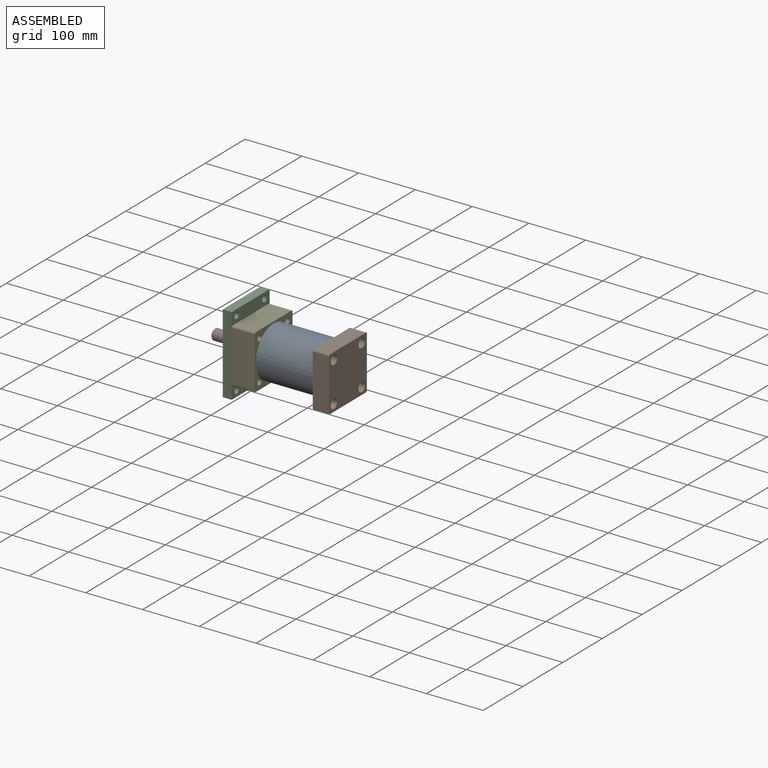
[diagram: assembled view]
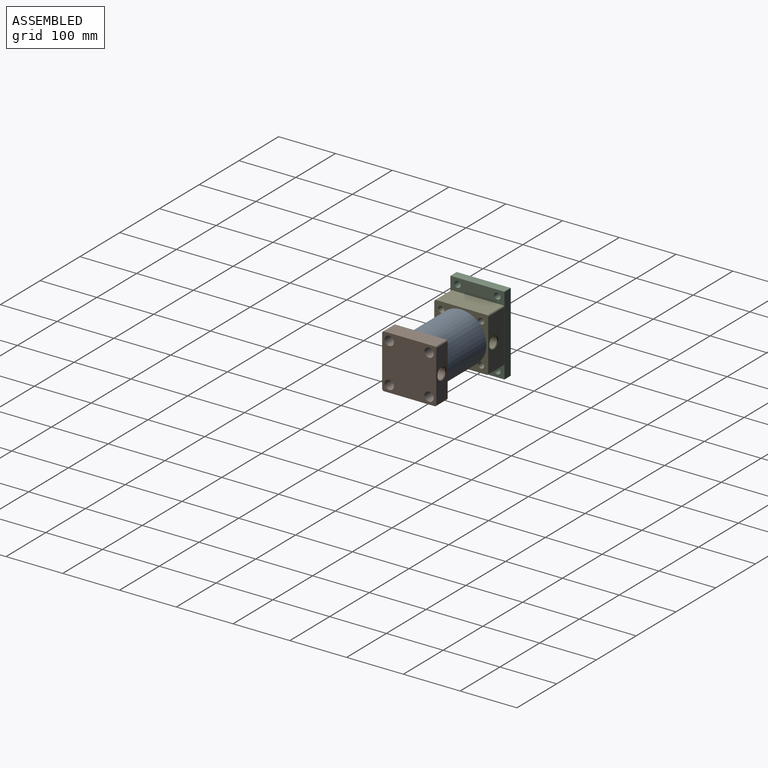
[diagram: assembled view, second angle]
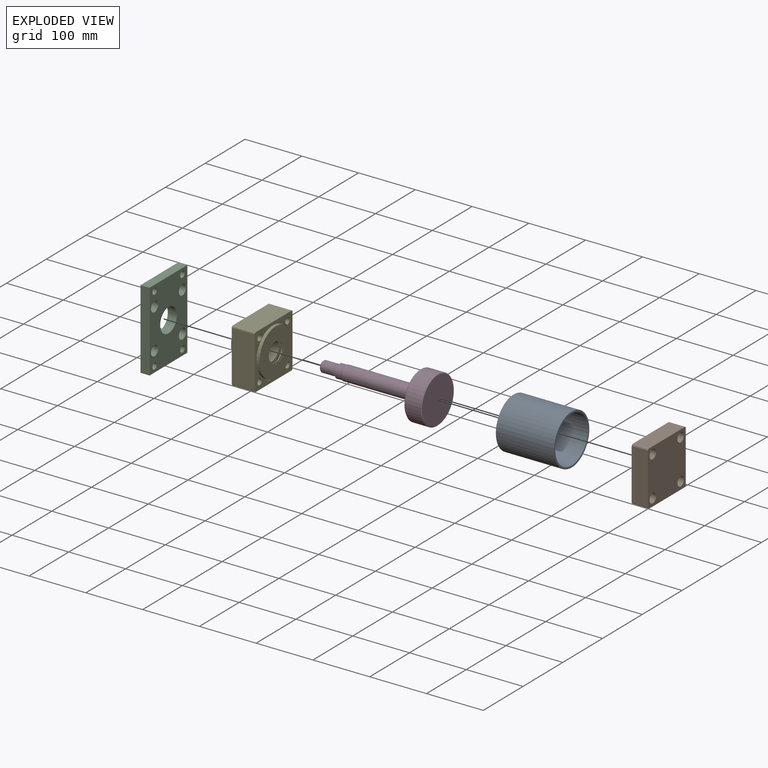
[diagram: exploded view]
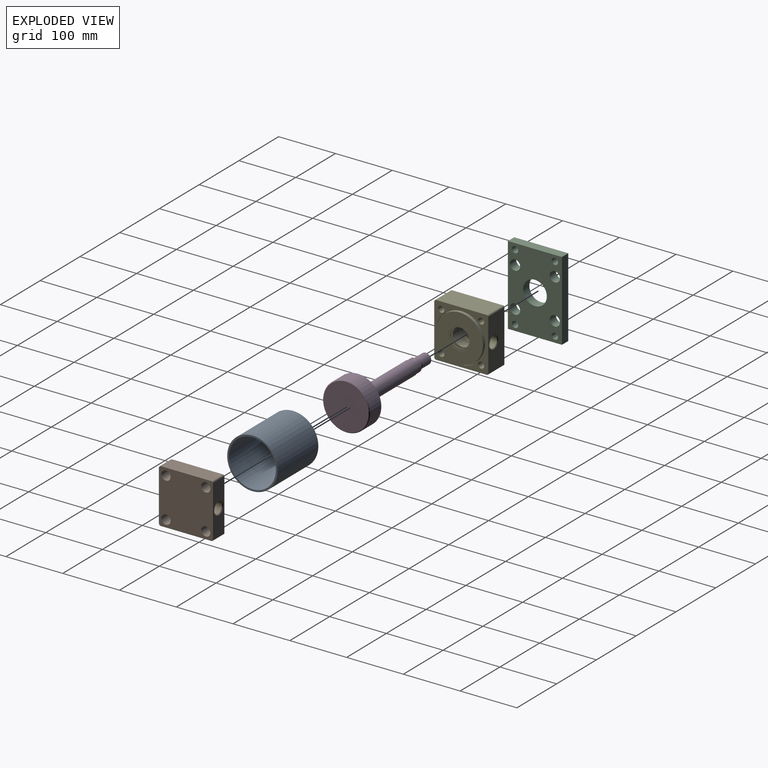
[diagram: exploded view, second angle]
ASSEMBLY  parts=5 mates=4
PART A: 4 faces, bbox 102.4x88.9x88.9 mm
  f0: plane 88.9x88.9mm, normal (-1,0,0), area 835.3mm2, adj f1,f3
  f1: cylinder r=41.35mm len=102.39mm, axis (-1,0,0), area 26602mm2, adj f0,f2
  f2: plane 88.9x88.9mm, normal (1,0,0), area 835.3mm2, adj f1,f3
  f3: cylinder r=44.45mm len=102.39mm, axis (-1,0,0), area 28595.5mm2, adj f0,f2
PART B: 32 faces, bbox 32.5x95.3x95.3 mm
  f0: cylinder r=2.54mm len=28.58mm, axis (1,0,0), area 114mm2, adj f1,f3,f11,f17
  f1: plane 95.25x95.25mm, normal (1,0,0), area 2794.2mm2, adj f0,f2,f3,f4,f5,f6,f7,f8
  f2: cylinder r=5.38mm len=10.77mm, axis (1,0,0), area 160.7mm2, adj f1,f15
  f3: plane 89.66x28.58mm, normal (0,0,1), area 2562.1mm2, adj f0,f1,f4,f17
  f4: cylinder r=2.54mm len=28.58mm, axis (1,0,0), area 114mm2, adj f1,f3,f5,f17
  f5: plane 28.58x0.51mm, normal (0,0,1), area 14.5mm2, adj f1,f4,f6,f17
  f6: plane 90.17x28.58mm, normal (0,-1,0), area 2576.6mm2, adj f1,f5,f7,f17
  f7: plane 28.58x0.51mm, normal (0,0,-1), area 14.5mm2, adj f1,f6,f8,f17
  f8: cylinder r=2.54mm len=28.58mm, axis (1,0,0), area 114mm2, adj f1,f7,f9,f17
  f9: plane 89.66x28.58mm, normal (0,0,-1), area 2562.1mm2, adj f1,f8,f10,f17
  f10: cylinder r=2.54mm len=28.58mm, axis (1,0,0), area 114mm2, adj f1,f9,f11,f17
  f11: plane 90.17x28.58mm, normal (0,1,0), area 2176.3mm2, adj f0,f1,f10,f17,f28
  f12: cylinder r=5.38mm len=10.77mm, axis (1,0,0), area 160.7mm2, adj f1,f23
  f13: cylinder r=8.17mm len=23.83mm, axis (1,0,0), area 1222.5mm2, adj f14,f17
  f14: plane 16.33x16.33mm, normal (-1,0,0), area 118.4mm2, adj f13,f18
  f15: plane 16.33x16.33mm, normal (-1,0,0), area 118.4mm2, adj f2,f16
  f16: cylinder r=8.17mm len=23.83mm, axis (1,0,0), area 1222.5mm2, adj f15,f17
  f17: plane 95.25x95.25mm, normal (-1,0,0), area 8226.5mm2, adj f0,f3,f4,f5,f6,f7,f8,f9
  f18: cylinder r=5.38mm len=10.77mm, axis (1,0,0), area 160.7mm2, adj f1,f14
  f19: cylinder r=5.38mm len=10.77mm, axis (1,0,0), area 160.7mm2, adj f1,f20
  f20: plane 16.33x16.33mm, normal (-1,0,0), area 118.4mm2, adj f19,f21
  f21: cylinder r=8.17mm len=23.83mm, axis (1,0,0), area 1222.5mm2, adj f17,f20
  f22: cylinder r=8.17mm len=23.83mm, axis (1,0,0), area 1222.5mm2, adj f17,f23
  f23: plane 16.33x16.33mm, normal (-1,0,0), area 118.4mm2, adj f12,f22
  f24: cylinder r=41.25mm len=82.5mm, axis (-1,0,0), area 1362.7mm2, adj f25,f26
  f25: plane 82.5x82.5mm, normal (1,0,0), area 5345.5mm2, adj f24
  f26: plane 86.72x86.72mm, normal (1,0,0), area 560.4mm2, adj f24,f27
  f27: cylinder r=43.36mm len=86.72mm, axis (-1,0,0), area 352.9mm2, adj f1,f26
  f28: cone r=11.29mm half-angle=45deg, axis (0,1,0), area 118mm2, adj f11,f29
  f29: cone r=10.04mm half-angle=1.8deg, axis (0,1,0), area 839.8mm2, adj f28,f30
  f30: cylinder r=9.62mm len=19.24mm, axis (0,1,0), area 169.2mm2, adj f29,f31
  f31: plane 19.24x19.24mm, normal (0,1,0), area 290.7mm2, adj f30
PART C: 15 faces, bbox 15.9x95.3x139.7 mm
  f0: plane 139.7x95.25mm, normal (1,0,0), area 10525.8mm2, adj f1,f3,f4,f5,f6,f7,f8,f9
  f1: cylinder r=5.56mm len=15.88mm, axis (1,0,0), area 554.8mm2, adj f0,f2
  f2: plane 139.7x95.25mm, normal (-1,0,0), area 10525.8mm2, adj f1,f3,f4,f5,f6,f7,f8,f9
  f3: cylinder r=8.99mm len=17.98mm, axis (1,0,0), area 896.9mm2, adj f0,f2
  f4: plane 139.7x15.88mm, normal (0,1,0), area 2217.7mm2, adj f0,f2,f5,f7
  f5: plane 95.25x15.88mm, normal (0,0,1), area 1512.1mm2, adj f0,f2,f4,f6
  f6: plane 139.7x15.88mm, normal (0,-1,0), area 2217.7mm2, adj f0,f2,f5,f7
  f7: plane 95.25x15.88mm, normal (0,0,-1), area 1512.1mm2, adj f0,f2,f4,f6
  f8: cylinder r=5.56mm len=15.88mm, axis (1,0,0), area 554.8mm2, adj f0,f2
  f9: cylinder r=20.93mm len=41.85mm, axis (1,0,0), area 2087.4mm2, adj f0,f2
  f10: cylinder r=5.56mm len=15.88mm, axis (1,0,0), area 554.8mm2, adj f0,f2
  f11: cylinder r=5.56mm len=15.88mm, axis (1,0,0), area 554.8mm2, adj f0,f2
  f12: cylinder r=8.99mm len=17.98mm, axis (1,0,0), area 896.9mm2, adj f0,f2
  f13: cylinder r=8.99mm len=17.98mm, axis (1,0,0), area 896.9mm2, adj f0,f2
  f14: cylinder r=8.99mm len=17.98mm, axis (1,0,0), area 896.9mm2, adj f0,f2
PART D: 22 faces, bbox 202.4x82.6x82.6 mm
  f0: cylinder r=11.91mm len=23.83mm, axis (-1,0,0), area 588.8mm2, adj f1,f2,f3,f18,f19,f20,f21
  f1: cone r=11.91mm half-angle=20deg, axis (1,0,0), area 178mm2, adj f0,f12
  f2: cone r=11.66mm half-angle=45deg, axis (1,0,0), area 10.2mm2, adj f0,f5,f18,f19
  f3: cone r=11.66mm half-angle=45deg, axis (1,0,0), area 10.2mm2, adj f0,f5,f18,f19
  f4: plane 15.49x15.49mm, normal (-1,0,0), area 188.5mm2, adj f11
  f5: plane 23.32x21.97mm, normal (-1,0,0), area 123.4mm2, adj f2,f3,f6,f18,f19
  f6: torus R=9.72mm, axis (1,0,0), area 135.4mm2, adj f5,f7
  f7: cylinder r=8.14mm len=16.28mm, axis (-1,0,0), area 48.5mm2, adj f6,f8
  f8: torus R=9.72mm, axis (1,0,0), area 64.5mm2, adj f7,f9
  f9: cone r=9.53mm half-angle=45deg, axis (-1,0,0), area 74.3mm2, adj f8,f10
  f10: cylinder r=9.53mm len=22.24mm, axis (-1,0,0), area 1330.9mm2, adj f9,f11
  f11: cone r=7.75mm half-angle=45deg, axis (1,0,0), area 136.4mm2, adj f4,f10
  f12: cylinder r=12.7mm len=130.25mm, axis (-1,0,0), area 10393.2mm2, adj f1,f13
  f13: plane 80.1x80.1mm, normal (-1,0,0), area 4532.2mm2, adj f12,f14
  f14: cone r=40.05mm half-angle=45deg, axis (1,0,0), area 447.6mm2, adj f13,f15
  f15: cylinder r=41.29mm len=82.58mm, axis (-1,0,0), area 7389.6mm2, adj f14,f16
  f16: cone r=41.29mm half-angle=45deg, axis (-1,0,0), area 447.6mm2, adj f15,f17
  f17: plane 80.1x80.1mm, normal (1,0,0), area 5038.9mm2, adj f16
  f18: plane 9.54x9.23mm, normal (0,0,-1), area 87.6mm2, adj f0,f2,f3,f5,f21
  f19: plane 9.54x9.23mm, normal (0,0,1), area 87.6mm2, adj f0,f2,f3,f5,f20
  f20: plane 9.22x0.93mm, normal (-1,0,0), area 5.7mm2, adj f0,f19
  f21: plane 9.22x0.93mm, normal (-1,0,0), area 5.7mm2, adj f0,f18
PART E: 65 faces, bbox 66.4x95.3x95.3 mm
  f0: plane 15.45x9.53mm, normal (0,1,0), area 145.6mm2, adj f4,f6,f8,f10,f19
  f1: plane 15.45x9.53mm, normal (0,0,-1), area 145.6mm2, adj f5,f6,f8,f9,f19
  f2: plane 15.45x9.53mm, normal (0,-1,0), area 145.6mm2, adj f3,f5,f8,f11,f19
  f3: cone r=19.04mm half-angle=45deg, axis (1,0,0), area 16.8mm2, adj f2,f7,f8,f19
  f4: cone r=19.04mm half-angle=45deg, axis (1,0,0), area 16.8mm2, adj f0,f7,f8,f19
  f5: cone r=19.04mm half-angle=45deg, axis (1,0,0), area 16.8mm2, adj f1,f2,f8,f19
  f6: cone r=19.04mm half-angle=45deg, axis (1,0,0), area 16.8mm2, adj f0,f1,f8,f19
  f7: plane 15.45x9.53mm, normal (0,0,1), area 145.6mm2, adj f3,f4,f8,f12,f19
  f8: cylinder r=19.04mm len=38.07mm, axis (-1,0,0), area 1979.2mm2, adj f0,f1,f2,f3,f4,f5,f6,f7
  f9: plane 15.45x1.64mm, normal (-1,0,0), area 17mm2, adj f1,f8
  f10: plane 15.45x1.64mm, normal (-1,0,0), area 17mm2, adj f0,f8
  f11: plane 15.45x1.64mm, normal (-1,0,0), area 17mm2, adj f2,f8
  f12: plane 15.45x1.64mm, normal (-1,0,0), area 17mm2, adj f7,f8
  f13: plane 38.07x38.07mm, normal (1,0,0), area 265.7mm2, adj f8,f14
  f14: cylinder r=16.67mm len=33.34mm, axis (-1,0,0), area 305.9mm2, adj f13,f33
  f15: plane 31.62x31.62mm, normal (1,0,0), area 274.4mm2, adj f16,f32
  f16: cylinder r=12.75mm len=25.5mm, axis (-1,0,0), area 1938.7mm2, adj f15,f17
  f17: cone r=14.61mm half-angle=45deg, axis (-1,0,0), area 225.4mm2, adj f16,f18
  f18: cylinder r=14.61mm len=29.21mm, axis (-1,0,0), area 703.9mm2, adj f17,f19
  f19: plane 34.8x34.8mm, normal (-1,0,0), area 352.9mm2, adj f0,f1,f2,f3,f4,f5,f6,f7
  f20: plane 19.24x19.24mm, normal (0,1,0), area 290.7mm2, adj f21
  f21: cylinder r=9.62mm len=19.24mm, axis (0,1,0), area 169.2mm2, adj f20,f22
  f22: cone r=10.04mm half-angle=1.8deg, axis (0,1,0), area 839.8mm2, adj f21,f23
  f23: cone r=11.29mm half-angle=45deg, axis (0,1,0), area 118mm2, adj f22,f56
  f24: cylinder r=19.94mm len=39.88mm, axis (-1,0,0), area 47.7mm2, adj f25,f39
  f25: plane 39.88x39.88mm, normal (1,0,0), area 345.9mm2, adj f24,f26
  f26: cylinder r=16.95mm len=33.91mm, axis (-1,0,0), area 124.5mm2, adj f25,f27
  f27: plane 47.63x47.63mm, normal (-1,0,0), area 878.3mm2, adj f26,f28
  f28: cylinder r=23.81mm len=47.63mm, axis (-1,0,0), area 718.3mm2, adj f27,f29
  f29: plane 47.63x47.63mm, normal (1,0,0), area 942.1mm2, adj f28,f30
  f30: cylinder r=16.34mm len=32.69mm, axis (-1,0,0), area 1833.8mm2, adj f29,f31
  f31: plane 32.69x32.69mm, normal (1,0,0), area 54.1mm2, adj f30,f32
  f32: cylinder r=15.81mm len=31.62mm, axis (-1,0,0), area 843.4mm2, adj f15,f31
  f33: plane 33.83x33.83mm, normal (-1,0,0), area 26.1mm2, adj f14,f34
  f34: cone r=17.46mm half-angle=19.7deg, axis (-1,0,0), area 174.8mm2, adj f33,f35
  f35: plane 38.13x38.13mm, normal (-1,0,0), area 183.6mm2, adj f34,f36
  f36: cylinder r=19.06mm len=38.13mm, axis (-1,0,0), area 167.3mm2, adj f35,f50
  f37: cylinder r=43.36mm len=86.72mm, axis (-1,0,0), area 352.9mm2, adj f38,f49
  f38: plane 86.72x86.72mm, normal (1,0,0), area 560.4mm2, adj f37,f40
  f39: plane 82.5x82.5mm, normal (1,0,0), area 4096.5mm2, adj f24,f40
  f40: cylinder r=41.25mm len=82.5mm, axis (-1,0,0), area 1362.7mm2, adj f38,f39
  f41: plane 16.33x16.33mm, normal (-1,0,0), area 118.4mm2, adj f42,f53
  f42: cylinder r=8.17mm len=23.83mm, axis (1,0,0), area 1222.5mm2, adj f41,f50
  f43: plane 16.33x16.33mm, normal (-1,0,0), area 118.4mm2, adj f44,f54
  f44: cylinder r=8.17mm len=23.83mm, axis (1,0,0), area 1222.5mm2, adj f43,f50
  f45: plane 16.33x16.33mm, normal (-1,0,0), area 118.4mm2, adj f46,f52
  f46: cylinder r=8.17mm len=23.83mm, axis (1,0,0), area 1222.5mm2, adj f45,f50
  f47: plane 16.33x16.33mm, normal (-1,0,0), area 118.4mm2, adj f48,f51
  f48: cylinder r=8.17mm len=23.83mm, axis (1,0,0), area 1222.5mm2, adj f47,f50
  f49: plane 95.25x95.25mm, normal (1,0,0), area 2794.2mm2, adj f37,f51,f52,f53,f54,f55,f56,f57
  f50: plane 95.25x95.25mm, normal (-1,0,0), area 7084.8mm2, adj f36,f42,f44,f46,f48,f55,f56,f57
  f51: cylinder r=5.38mm len=16.66mm, axis (1,0,0), area 563.8mm2, adj f47,f49
  f52: cylinder r=5.38mm len=16.66mm, axis (1,0,0), area 563.8mm2, adj f45,f49
  f53: cylinder r=5.38mm len=16.66mm, axis (1,0,0), area 563.8mm2, adj f41,f49
  f54: cylinder r=5.38mm len=16.66mm, axis (1,0,0), area 563.8mm2, adj f43,f49
  f55: cylinder r=2.54mm len=40.49mm, axis (1,0,0), area 161.5mm2, adj f49,f50,f56,f64
  f56: plane 90.17x40.49mm, normal (0,1,0), area 3250.5mm2, adj f23,f49,f50,f55,f57
  f57: cylinder r=2.54mm len=40.49mm, axis (1,0,0), area 161.5mm2, adj f49,f50,f56,f58
  f58: plane 89.66x40.49mm, normal (0,0,-1), area 3630.2mm2, adj f49,f50,f57,f59
  f59: cylinder r=2.54mm len=40.49mm, axis (1,0,0), area 161.5mm2, adj f49,f50,f58,f60
  f60: plane 40.49x0.51mm, normal (0,0,-1), area 20.6mm2, adj f49,f50,f59,f61
  f61: plane 90.17x40.49mm, normal (0,-1,0), area 3650.8mm2, adj f49,f50,f60,f62
  f62: plane 40.49x0.51mm, normal (0,0,1), area 20.6mm2, adj f49,f50,f61,f63
  f63: cylinder r=2.54mm len=40.49mm, axis (1,0,0), area 161.5mm2, adj f49,f50,f62,f64
  f64: plane 89.66x40.49mm, normal (0,0,1), area 3630.2mm2, adj f49,f50,f55,f63
PLACE A t=(40.49,0,0)mm
PLACE B rot(axis=(0,1,0),180deg) t=(171.45,0,0)mm
PLACE C rot(axis=(0,0,1),180deg) t=(0,0.24,0)mm
PLACE D t=(-63.5,0,0)mm
PLACE E at identity fixed
MATE fastened A.f1 <-> E.f3  axis (-1,0,0) through (40.49,0,0)mm
MATE fastened E.f13 <-> C.f9  axis (-1,0,0) through (0,0.24,0)mm
MATE slider E.f3 <-> D.f0  axis (-1,0,0) through (0,0,0)mm
MATE fastened A.f1 <-> B.f24  axis (1,0,0) through (142.88,0,0)mm
